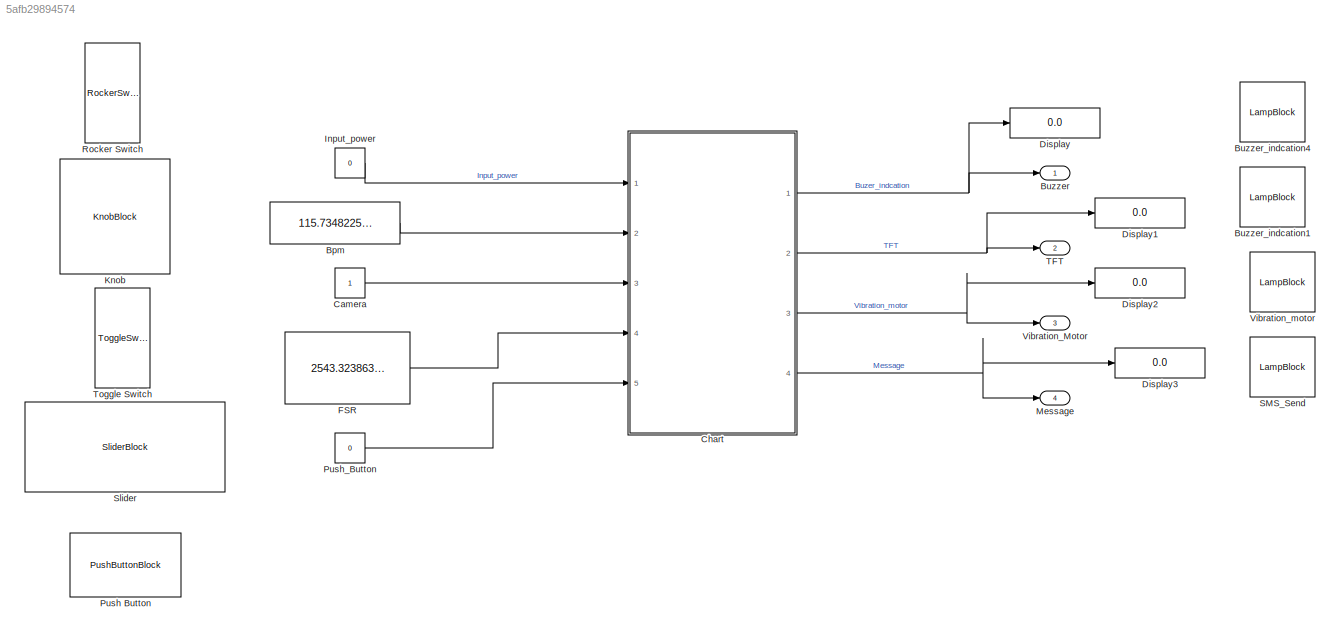
MODEL slx_5afb29894574
KIND model
CONFIG AbsTol = auto
CONFIG EnableMultiTasking = off
CONFIG FixedStep = auto
CONFIG MaxStep = auto
CONFIG MinStep = auto
CONFIG RelTol = 1e-3
CONFIG SampleTimeConstraint = Unconstrained
CONFIG SolverName = FixedStepAuto
CONFIG StartTime = 0.0
CONFIG StopTime = inf
BLOCK [Constant] Bpm
  Value = 115.7348225911458
BLOCK [Outport] Buzzer
BLOCK [LampBlock] Buzzer_indcation1
  Icon = LightingSwitch
BLOCK [LampBlock] Buzzer_indcation4
  Icon = Hazards
BLOCK [Constant] Camera
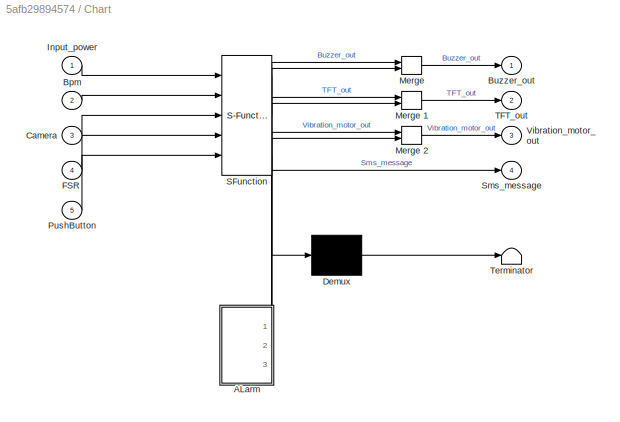
BLOCK [SubSystem] Chart
  ErrorFcn = Stateflow.Translate.translate
  PermitHierarchicalResolution = ExplicitOnly
  Ports = [5, 4]
  RequestExecContextInheritance = off
  SFBlockType = Chart
  TreatAsAtomicUnit = on
BLOCK [Demux] Chart/ Demux 
  Outputs = 1
  Ports = [1, 1]
BLOCK [Merge] Chart/ Merge 
  Ports = [2, 1]
BLOCK [Merge] Chart/ Merge 1
  Ports = [2, 1]
BLOCK [Merge] Chart/ Merge 2
  Ports = [2, 1]
BLOCK [S-Function] Chart/ SFunction 
  EnableBusSupport = on
  FunctionName = sf_sfun
  PortCounts = [5 5]
  Ports = [5, 5]
  SFcnIsStateOwnerBlock = off
  SFunctionDeploymentMode = off
  Tag = Stateflow S-Function 3
BLOCK [Terminator] Chart/ Terminator 
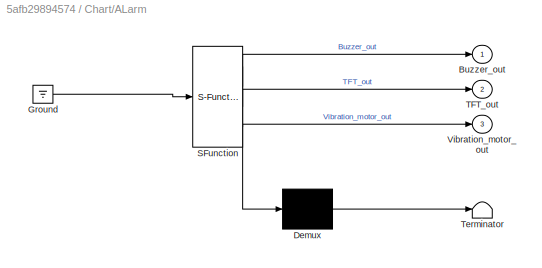
BLOCK [SubSystem] Chart/ALarm
  CopyFcn = set_param(gcbh, 'DSMNames', '', 'DSMValues', '', 'CopyFcn', '')
  ErrorFcn = Stateflow.Translate.translate
  PermitHierarchicalResolution = ExplicitOnly
  Ports = [0, 3]
  RequestExecContextInheritance = off
  SFBlockType = Chart
  TreatAsAtomicUnit = on
BLOCK [Demux] Chart/ALarm/ Demux 
  Outputs = 1
  Ports = [1, 1]
BLOCK [Ground] Chart/ALarm/ Ground 
BLOCK [S-Function] Chart/ALarm/ SFunction 
  EnableBusSupport = off
  FunctionName = sf_sfun
  PortCounts = [1 4]
  Ports = [1, 4]
  SFcnIsStateOwnerBlock = off
  SFunctionDeploymentMode = off
  Tag = Stateflow S-Function 1
BLOCK [Terminator] Chart/ALarm/ Terminator 
BLOCK [Outport] Chart/ALarm/Buzzer_out
BLOCK [Outport] Chart/ALarm/TFT_out
  Port = 2
BLOCK [Outport] Chart/ALarm/Vibration_motor_out
  Port = 3
BLOCK [Inport] Chart/Bpm
  Port = 2
BLOCK [Outport] Chart/Buzzer_out
BLOCK [Inport] Chart/Camera
  Port = 3
BLOCK [Inport] Chart/FSR
  Port = 4
BLOCK [Inport] Chart/Input_power
BLOCK [Inport] Chart/PushButton
  Port = 5
BLOCK [Outport] Chart/Sms_message
  Port = 4
BLOCK [Outport] Chart/TFT_out
  Port = 2
BLOCK [Outport] Chart/Vibration_motor_out
  Port = 3
BLOCK [Display] Display
  Decimation = 1
  Ports = [1]
BLOCK [Display] Display1
  Decimation = 1
  Ports = [1]
BLOCK [Display] Display2
  Decimation = 1
  Ports = [1]
BLOCK [Display] Display3
  Decimation = 1
  Ports = [1]
BLOCK [Constant] FSR
  Value = 2543.323863636364
BLOCK [Constant] Input_power
  Value = 0
BLOCK [KnobBlock] Knob
  ScaleMax = 200
BLOCK [Outport] Message
  Port = 4
BLOCK [PushButtonBlock] Push Button
BLOCK [Constant] Push_Button
  Value = 0
BLOCK [RockerSwitchBlock] Rocker Switch
BLOCK [LampBlock] SMS_Send
  Icon = LightingSwitch
BLOCK [SliderBlock] Slider
  ScaleMax = 3000
  ScaleMin = 500
BLOCK [Outport] TFT
  Port = 2
BLOCK [ToggleSwitchBlock] Toggle Switch
BLOCK [Outport] Vibration_Motor
  Port = 3
BLOCK [LampBlock] Vibration_motor
  Icon = LightingSwitch
LINE Bpm:1 -> Chart:2
LINE Camera:1 -> Chart:3
NET Chart:1 -> Buzzer:1, Display:1
NET Chart:2 -> Display1:1, TFT:1
NET Chart:3 -> Display2:1, Vibration_Motor:1
NET Chart:4 -> Display3:1, Message:1
LINE FSR:1 -> Chart:4
LINE Input_power:1 -> Chart:1
LINE Push_Button:1 -> Chart:5
note: NET lines group one-source signal fan-out (src -> all destinations, sorted); 1:1 wires keep LINE
CHART Chart/ALarm states=3 transitions=0
  STATE_LABEL 'Buzzer\nen:\nBuzzer_out=1;\n\n'
  STATE_LABEL 'vibration_motor\nen:\nVibration_motor_out=1;\n\n'
  STATE_LABEL 'TFT\n\nen:\nTFT_out=1;'
CHART Chart states=4 transitions=7
  STATE_LABEL 'ALarm'
  STATE_LABEL 'Device_OFF'
  STATE_LABEL 'Device_ON\n\nen:\n'
  STATE_LABEL 'SMS\nen:\nSms_message=1;\n\nex:\nSms_message=0;'
CHART  states=0 transitions=0
CHART  states=0 transitions=0
